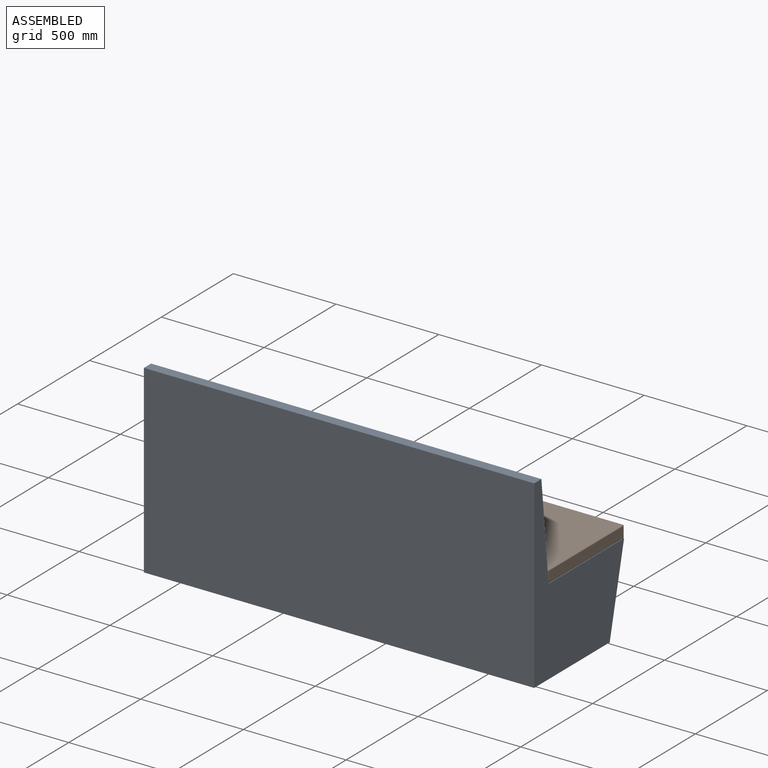
[diagram: assembled view]
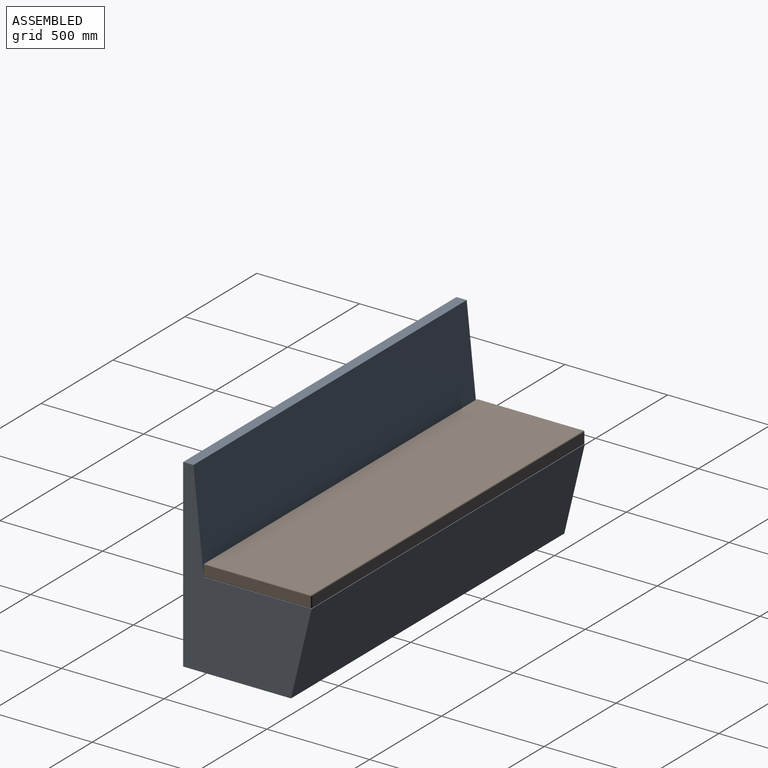
[diagram: assembled view, second angle]
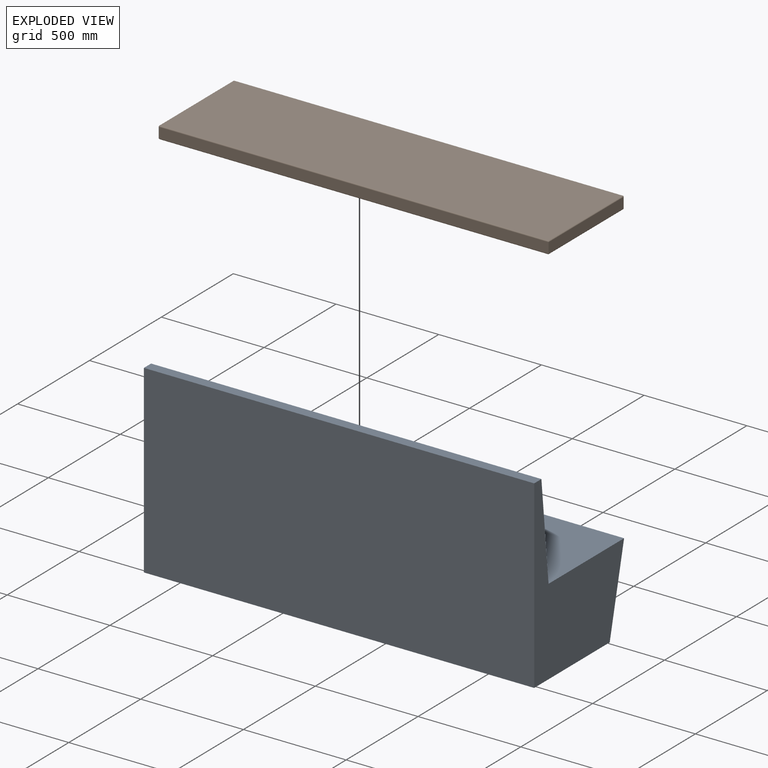
[diagram: exploded view]
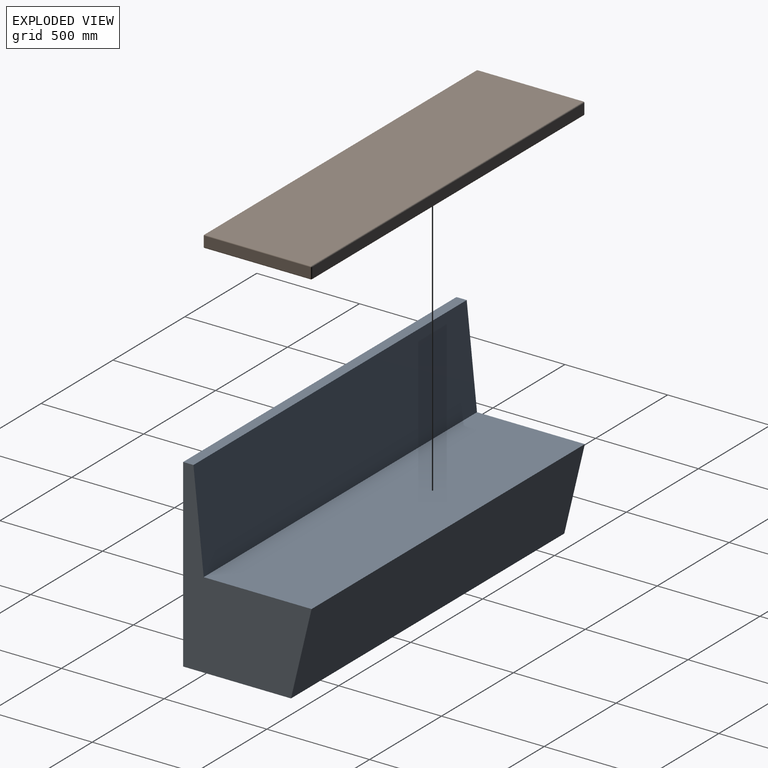
[diagram: exploded view, second angle]
ASSEMBLY  parts=2 mates=2
PART A: 8 faces, bbox 1900x625x900 mm
  f0: plane 1900x420mm, normal (0,0.97,-0.23), area 820307.3mm2, adj f1,f5,f6,f7
  f1: plane 1900x525mm, normal (0,0,1), area 997500mm2, adj f0,f2,f6,f7
  f2: plane 1900x480mm, normal (0,0.99,0.1), area 916934.6mm2, adj f1,f3,f6,f7
  f3: plane 1900x50mm, normal (0,0,1), area 95000mm2, adj f2,f4,f6,f7
  f4: plane 1900x900mm, normal (0,-1,0), area 1710000mm2, adj f3,f5,f6,f7
  f5: plane 1900x525mm, normal (0,0,-1), area 997500mm2, adj f0,f4,f6,f7
  f6: plane 900x625mm, normal (1,0,0), area 277500mm2, adj f0,f1,f2,f3,f4,f5
  f7: plane 900x625mm, normal (-1,0,0), area 277500mm2, adj f0,f1,f2,f3,f4,f5
PART B: 23 faces, bbox 1900x525x60 mm
  f0: plane 1895x50mm, normal (0,-1,0), area 94750mm2, adj f5,f11,f18,f22
  f1: plane 1890x515mm, normal (0,0,-1), area 973350mm2, adj f16,f17,f21,f22
  f2: plane 1890x50mm, normal (0,1,0), area 94500mm2, adj f8,f9,f15,f16
  f3: plane 1890x515mm, normal (0,0,1), area 973350mm2, adj f7,f8,f10,f11
  f4: plane 515x50mm, normal (-1,0,0), area 25750mm2, adj f9,f10,f17,f18
  f5: plane 520x50mm, normal (1,0,0), area 26000mm2, adj f0,f7,f15,f21
  f6: sphere r=5mm, area 39.3mm2, adj f8,f9,f10
  f7: cylinder r=5mm len=520mm, axis (0,-1,0), area 4069.8mm2, adj f3,f5,f11,f12
  f8: cylinder r=5mm len=1890mm, axis (-1,0,0), area 14844mm2, adj f2,f3,f6,f12
  f9: cylinder r=5mm len=50mm, axis (0,0,-1), area 392.7mm2, adj f2,f4,f6,f13
  f10: cylinder r=5mm len=515mm, axis (0,1,0), area 4044.8mm2, adj f3,f4,f6,f14
  f11: cylinder r=5mm len=1895mm, axis (1,0,0), area 14869mm2, adj f0,f3,f7,f14
  f12: sphere r=5mm, area 39.3mm2, adj f7,f8,f15
  f13: sphere r=5mm, area 39.3mm2, adj f9,f16,f17
  f14: sphere r=5mm, area 39.3mm2, adj f10,f11,f18
  f15: cylinder r=5mm len=50mm, axis (0,0,1), area 392.7mm2, adj f2,f5,f12,f19
  f16: cylinder r=5mm len=1890mm, axis (1,0,0), area 14844mm2, adj f1,f2,f13,f19
  f17: cylinder r=5mm len=515mm, axis (0,-1,0), area 4044.8mm2, adj f1,f4,f13,f20
  f18: cylinder r=5mm len=50mm, axis (0,0,1), area 392.7mm2, adj f0,f4,f14,f20
  f19: sphere r=5mm, area 39.3mm2, adj f15,f16,f21
  f20: sphere r=5mm, area 39.3mm2, adj f17,f18,f22
  f21: cylinder r=5mm len=520mm, axis (0,1,0), area 4069.8mm2, adj f1,f5,f19,f22
  f22: cylinder r=5mm len=1895mm, axis (-1,0,0), area 14869mm2, adj f0,f1,f20,f21
PLACE A t=(-2634.47,-571.44,187.38)mm fixed
PLACE B t=(-734.47,-471.44,607.38)mm
MATE planar B.f1 <-> A.f1  axis (0,0,-1) through (-1684.47,-208.94,607.38)mm
MATE planar B.f1 <-> A.f1  axis (0,0,-1) through (-1684.47,-208.94,607.38)mm
